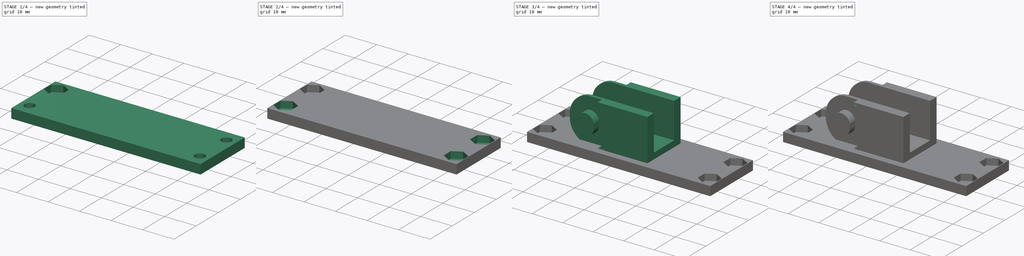
[diagram: build sequence overview — one tinted view per stage of 4, left to right]
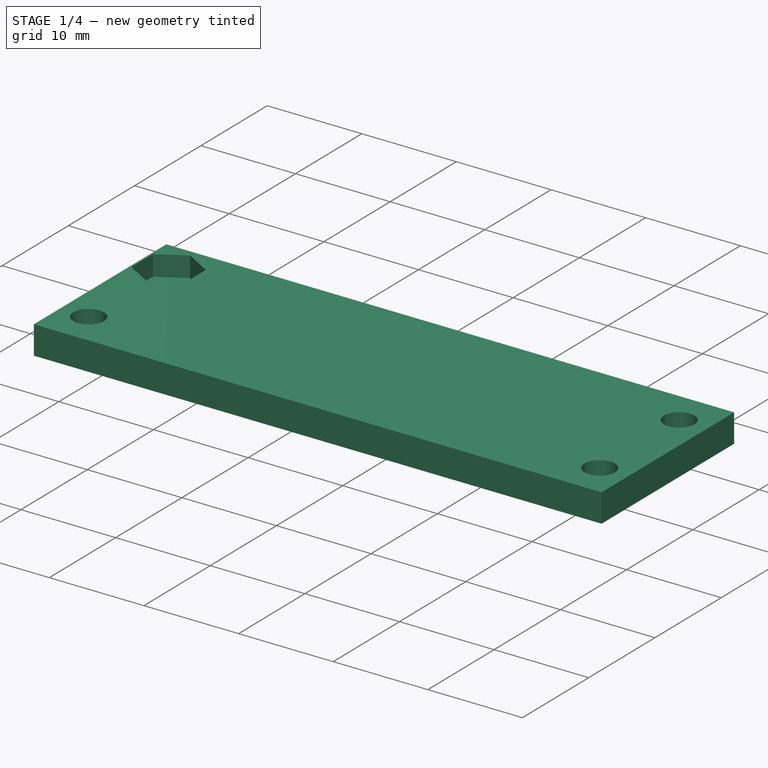
[diagram: stage 1 of 4 — iso view after this stage's code; geometry added in this stage tinted green]
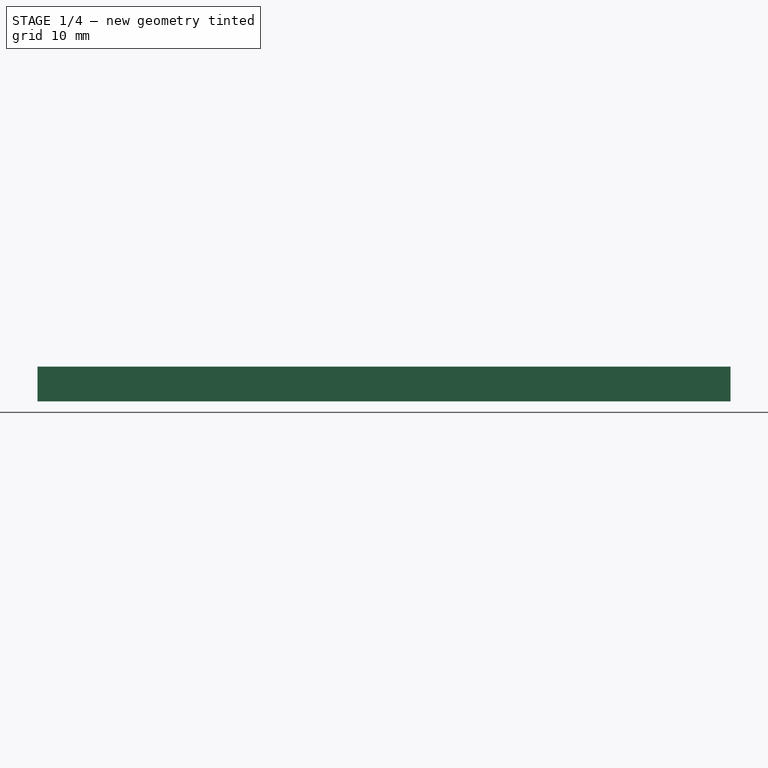
[diagram: stage 1 of 4 — front view after this stage's code; geometry added in this stage tinted green]
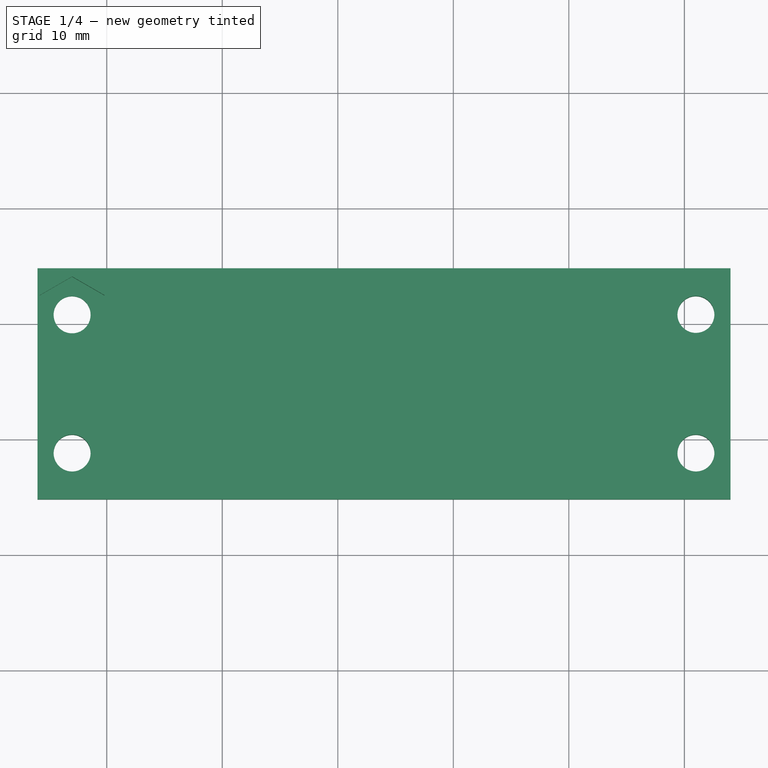
[diagram: stage 1 of 4 — top view after this stage's code; geometry added in this stage tinted green]
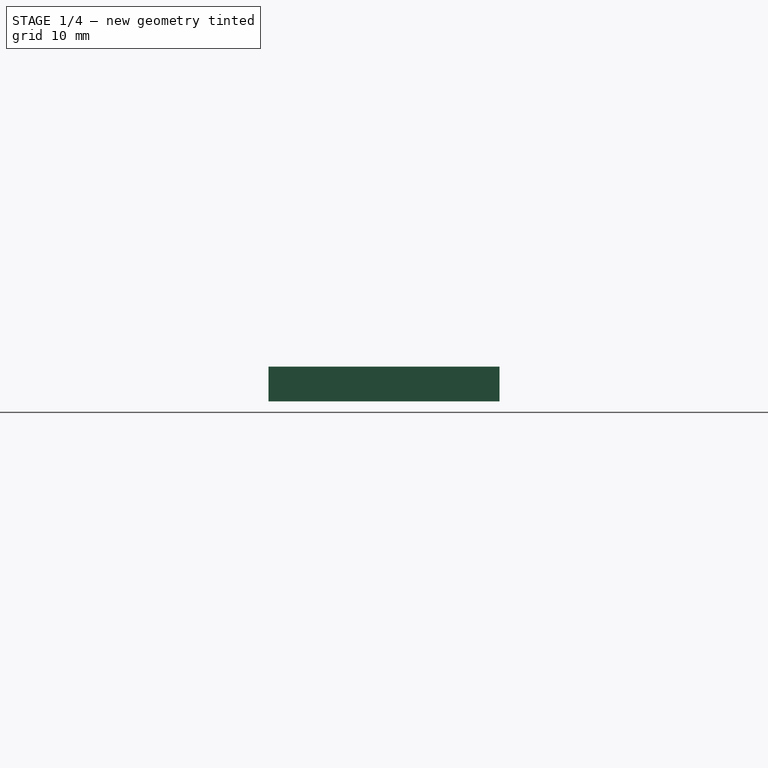
[diagram: stage 1 of 4 — right view after this stage's code; geometry added in this stage tinted green]
FCSTD DOCUMENT  (FreeCAD 0.15R4664 (Git))
Label: cadeneta-macho
License: CC-BY 3.0
LicenseURL: http://creativecommons.org/licenses/by/3.0/
objects: Part::Feature×5, Sketcher::SketchObject×4, Part::Cut×4, PartDesign::Pad×3, Part::Box×2, Part::MultiFuse×2, Part::Mirroring×1, PartDesign::Pocket×1
note: 26 computed .brp shape members not serialized (recipe doc carries the construction recipe); baked Part::Feature solids carry a one-line shape summary decoded from their .brp

FEATURE [Part::Feature] Fusion001  label="cable-chain-end-male"
  Placement = pos=(0,0,1) rot=(0,0,1;0rad)
  shape: bbox 26.85 x 16.5 x 13.7 mm, 26 faces (baked)
FEATURE [Part::Box] Box001  label="Cubo001"
  Height = 3
  Length = 60
  Placement = pos=(-26,-5.2,-8.85) rot=(0,0,1;0rad)
  Width = 20
FEATURE [Sketcher::SketchObject] Sketch003
  Placement = pos=(-26,-5.2,-5.85) rot=(0,0,1;0rad)
  Support = -> Box001 [Face6]
  sketch-geometry (7):
    g0: Circle CenterX=3 CenterY=4 CenterZ=0 NormalX=0 NormalY=0 NormalZ=1 Radius=1.6
    g1: LineSegment [constr] StartX=3 StartY=4 StartZ=0 EndX=3 EndY=16 EndZ=0
    g2: Circle CenterX=3 CenterY=16 CenterZ=0 NormalX=0 NormalY=0 NormalZ=1 Radius=1.6
    g3: LineSegment [constr] StartX=3 StartY=16 StartZ=0 EndX=57 EndY=16 EndZ=0
    g4: Circle CenterX=57 CenterY=16 CenterZ=0 NormalX=0 NormalY=0 NormalZ=1 Radius=1.6
    g5: LineSegment [constr] StartX=57 StartY=16 StartZ=0 EndX=57 EndY=4 EndZ=0
    g6: Circle CenterX=57 CenterY=4 CenterZ=0 NormalX=0 NormalY=0 NormalZ=1 Radius=1.6
  constraints (17):
    c: DistanceY(g-1,g0) = 4
    c: DistanceX(g-2,g0) = 3
    c: Coincident(g1,g0)
    c: Vertical(g1)
    c: Distance(g1) = 12
    c: Coincident(g2,g1)
    c: Radius(g2) = 1.6
    c: Coincident(g3,g1)
    c: Horizontal(g3)
    c: Distance(g3) = 54
    c: Coincident(g5,g3)
    c: Vertical(g5)
    c: Equal(g1,g5)
    c: Coincident(g6,g5)
    c: Equal(g6,g4)
    c: Equal(g4,g0)
    c: Equal(g0,g2)
FEATURE [PartDesign::Pocket] Pocket
  Length = 5
  Placement = pos=(-26,-5.2,-8.85) rot=(0,0,1;0rad)
  Sketch = -> Sketch003
  Type = 1
FEATURE [Part::Feature] Pad003  label="m3-nut-pocket-model001"
  Placement = pos=(-23,9.5,-8) rot=(0,0,1;0rad)
  shape: bbox 5.6 x 6.466 x 3 mm, 8 faces (baked)
FEATURE [Part::Feature] Pad004  label="m3-nut-pocket-model002"
  Placement = pos=(31,-2.5,-8) rot=(0,0,1;0rad)
  shape: bbox 5.6 x 6.466 x 3 mm, 8 faces (baked)
FEATURE [Part::Feature] Pad005  label="m3-nut-pocket-model003"
  Placement = pos=(31,9.5,-8) rot=(0,0,1;0rad)
  shape: bbox 5.6 x 6.466 x 3 mm, 8 faces (baked)
FEATURE [Part::Feature] Pad006  label="m3-nut-pocket-model004"
  Placement = pos=(-23,-2.5,-8) rot=(0,0,1;0rad)
  shape: bbox 5.6 x 6.466 x 3 mm, 8 faces (baked)
FEATURE [Part::Cut] Cut
  Base = -> Pocket
  Tool = -> Pad003
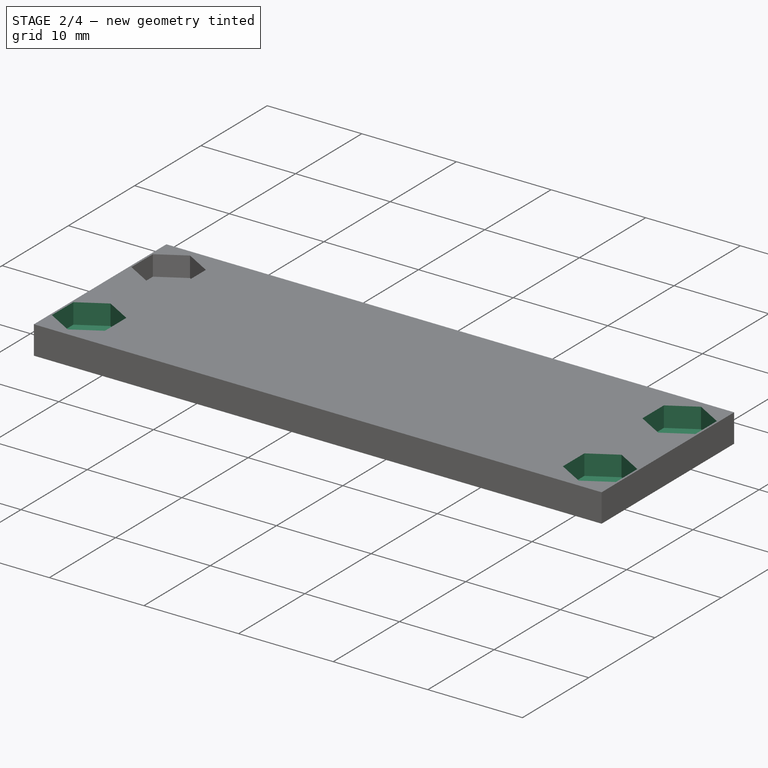
[diagram: stage 2 of 4 — iso view after this stage's code; geometry added in this stage tinted green]
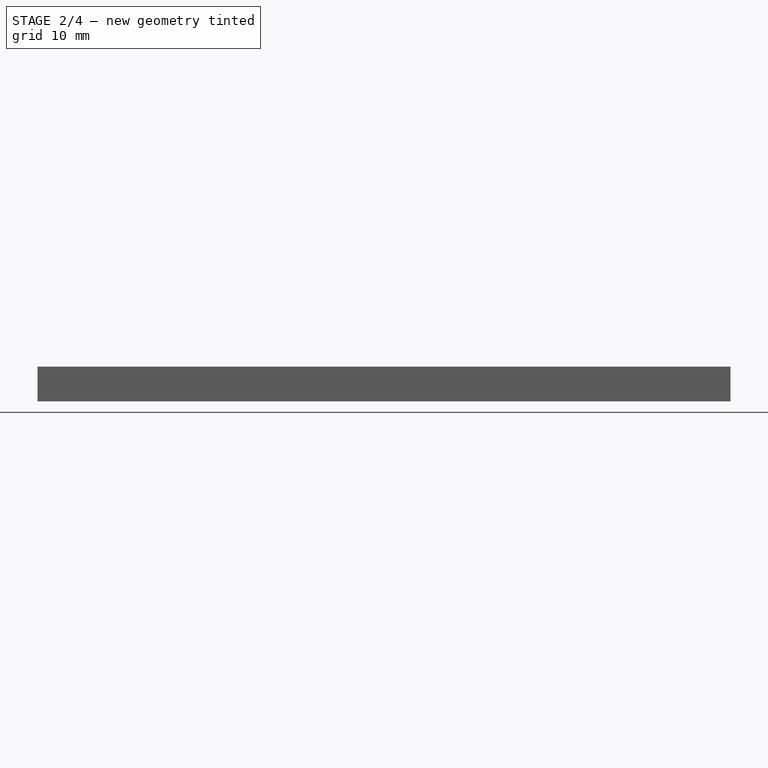
[diagram: stage 2 of 4 — front view after this stage's code; geometry added in this stage tinted green]
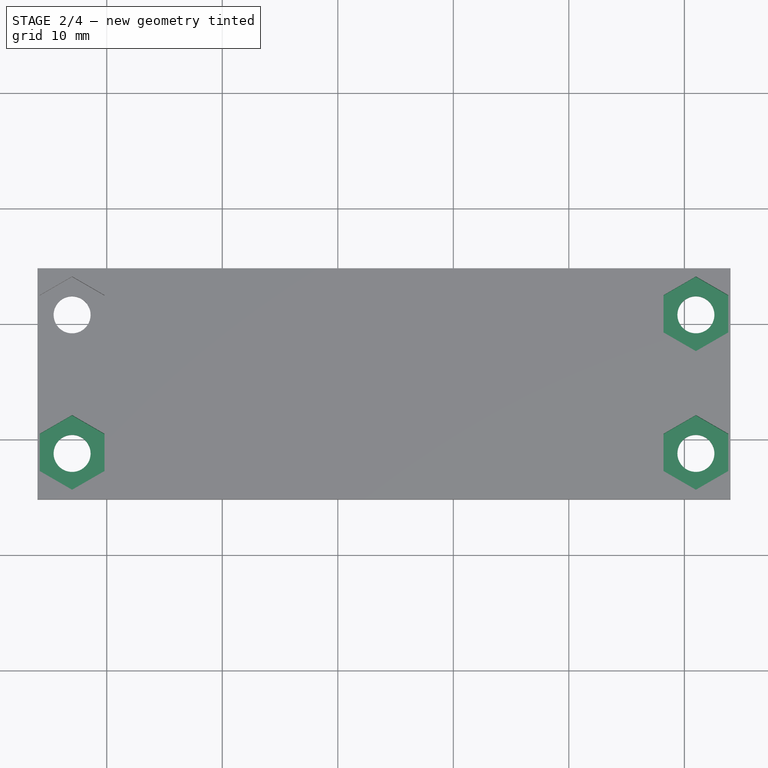
[diagram: stage 2 of 4 — top view after this stage's code; geometry added in this stage tinted green]
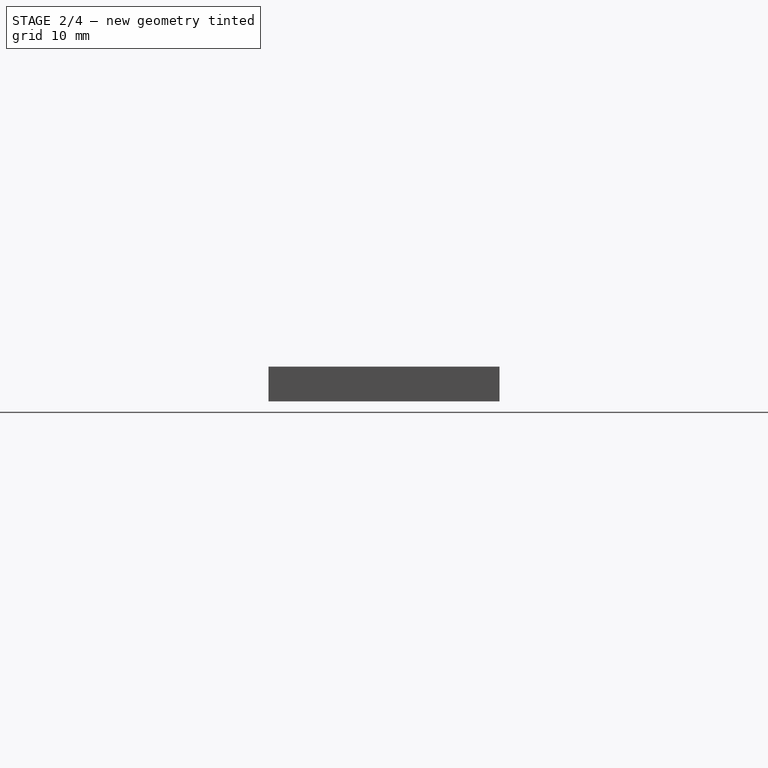
[diagram: stage 2 of 4 — right view after this stage's code; geometry added in this stage tinted green]
FEATURE [Part::Cut] Cut001
  Base = -> Cut
  Tool = -> Pad004
FEATURE [Part::Cut] Cut002
  Base = -> Cut001
  Tool = -> Pad005
FEATURE [Part::Cut] Cut003
  Base = -> Cut002
  Tool = -> Pad006
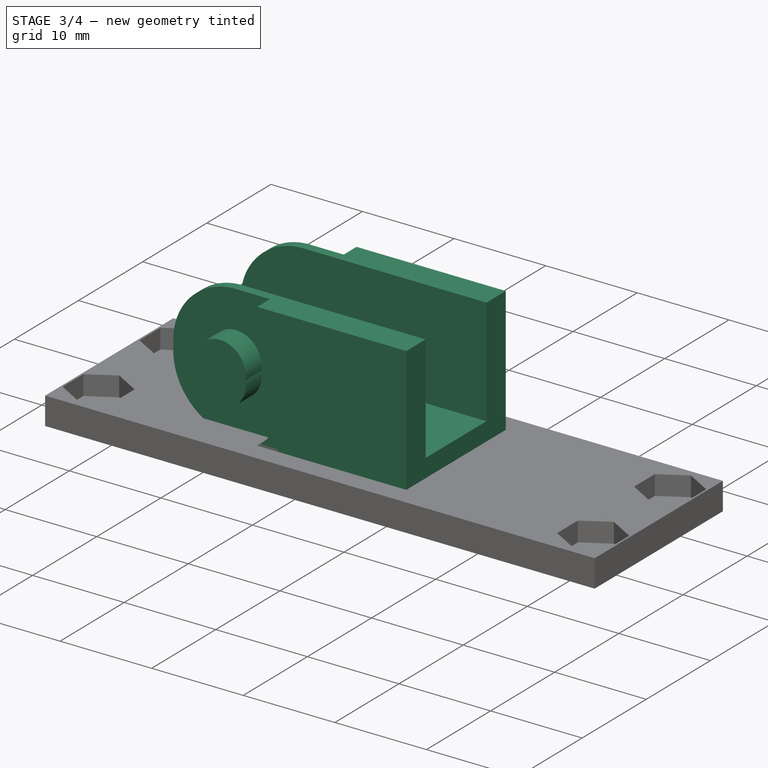
[diagram: stage 3 of 4 — iso view after this stage's code; geometry added in this stage tinted green]
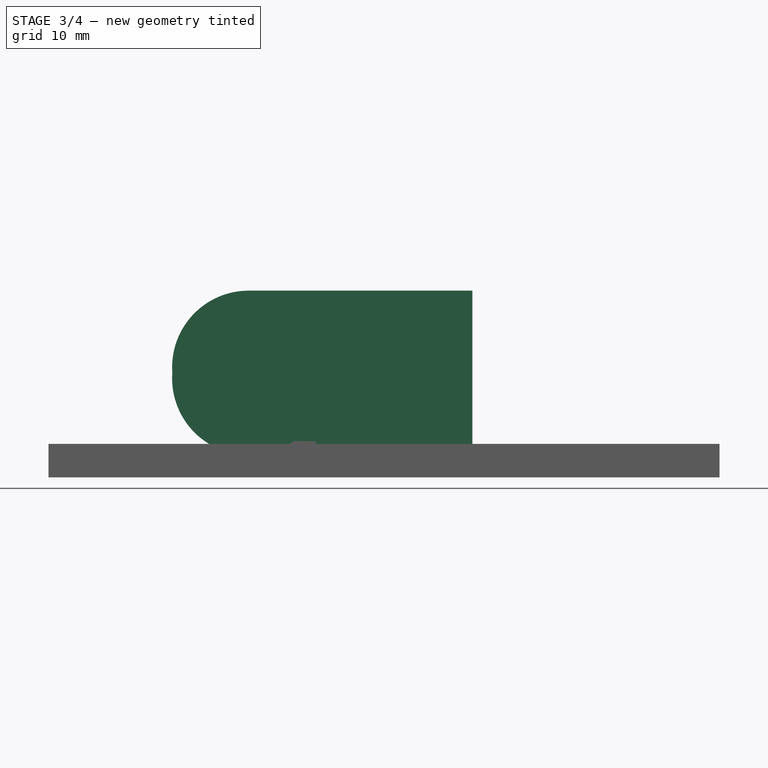
[diagram: stage 3 of 4 — front view after this stage's code; geometry added in this stage tinted green]
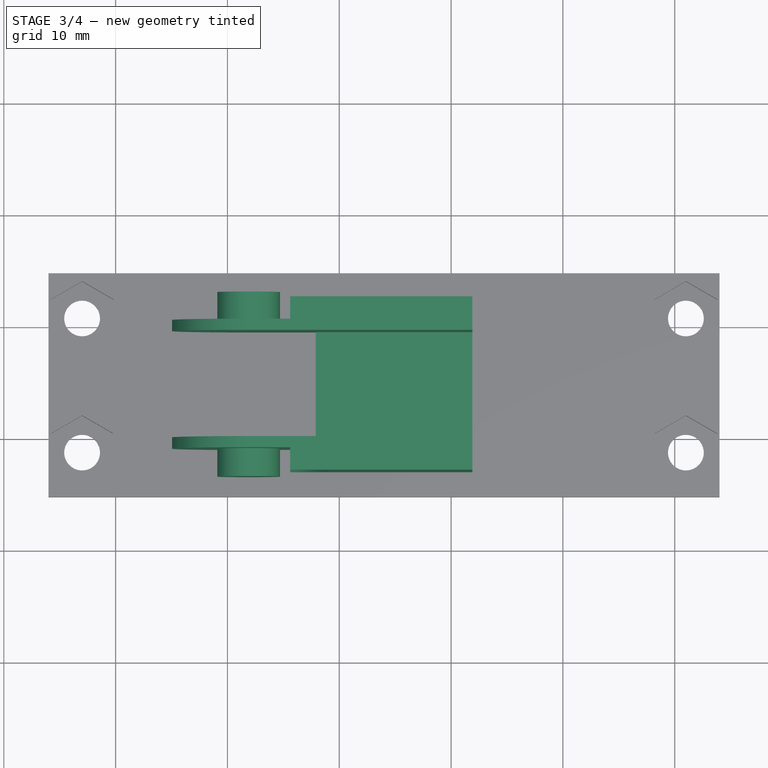
[diagram: stage 3 of 4 — top view after this stage's code; geometry added in this stage tinted green]
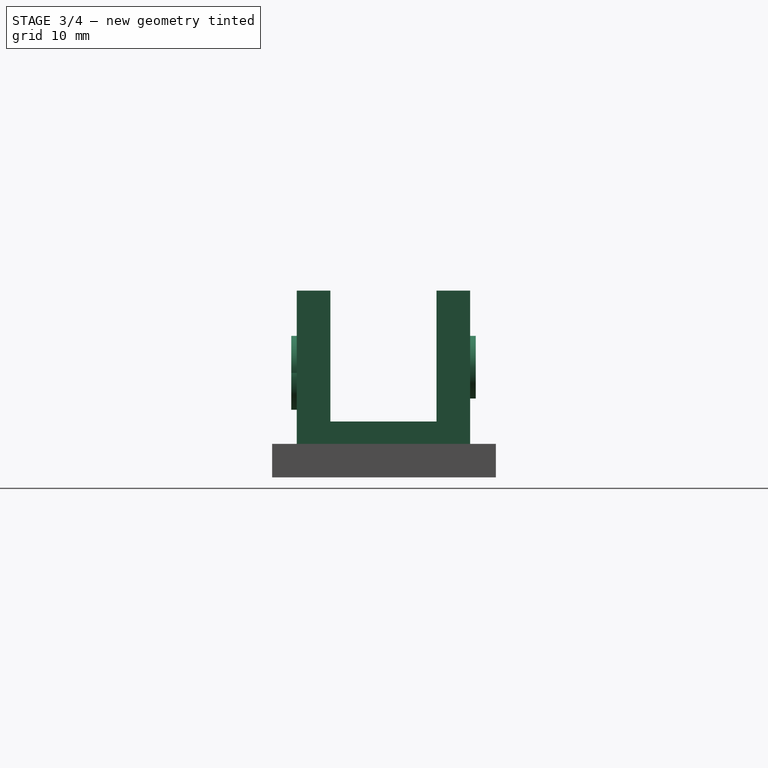
[diagram: stage 3 of 4 — right view after this stage's code; geometry added in this stage tinted green]
FEATURE [Sketcher::SketchObject] Sketch
  Placement = pos=(0,0,0) rot=(1,0,0;1.5708rad)
  sketch-geometry (4):
    g0: LineSegment StartX=-8.09834 StartY=6.85 StartZ=0 EndX=11.9017 EndY=6.85 EndZ=0
    g1: LineSegment StartX=11.9017 StartY=6.85 StartZ=0 EndX=11.9017 EndY=-6.85 EndZ=0
    g2: LineSegment StartX=11.9017 StartY=-6.85 StartZ=0 EndX=-8.09834 EndY=-6.85 EndZ=0
    g3: ArcOfCircle CenterX=-8.09833 CenterY=0 CenterZ=0 NormalX=0 NormalY=0 NormalZ=1 Radius=6.85 StartAngle=1.5708 EndAngle=4.71239
  constraints (13):
    c: Horizontal(g0)
    c: Coincident(g0,g1)
    c: Vertical(g1)
    c: Coincident(g1,g2)
    c: Horizontal(g2)
    c: Coincident(g3,g0)
    c: Coincident(g3,g2)
    c: DistanceY(g1) = -13.7
    c: Equal(g2,g0)
    c: DistanceX(g0) = 20
    c: Symmetric(g0,g1,g-1)
    c: Radius(g3) = 6.85
    c: Distance(g-1,g3) = 8.09833
FEATURE [PartDesign::Pad] Pad
  Length = 1
  Length2 = 100
  Placement = pos=(0,0,0) rot=(1,0,0;1.5708rad)
  Sketch = -> Sketch
  Type = 0
FEATURE [Sketcher::SketchObject] Sketch001
  Placement = pos=(0,-1,0) rot=(1,0,0;1.5708rad)
  Support = -> Pad [Face6]
  sketch-geometry (1):
    g0: Circle CenterX=-8.09833 CenterY=0 CenterZ=0 NormalX=0 NormalY=0 NormalZ=1 Radius=2.8
  constraints (3):
    c: PointOnObject(g0,g-1)
    c: DistanceX(g-2,g0) = -8.09833
    c: Radius(g0) = 2.8
FEATURE [PartDesign::Pad] Pad001
  Length = 2.5
  Length2 = 100
  Placement = pos=(0,0,0) rot=(1,0,0;1.5708rad)
  Sketch = -> Sketch001
  Type = 0
FEATURE [Part::Box] Box  label="Cubo"
  Height = 2
  Length = 14
  Placement = pos=(-2.1,-3,-6.85) rot=(0,0,1;0rad)
  Width = 15.5
FEATURE [Part::MultiFuse] Fusion002  label="cable-chain-end-male-final"
  Shapes = -> [Fusion001,Cut003]
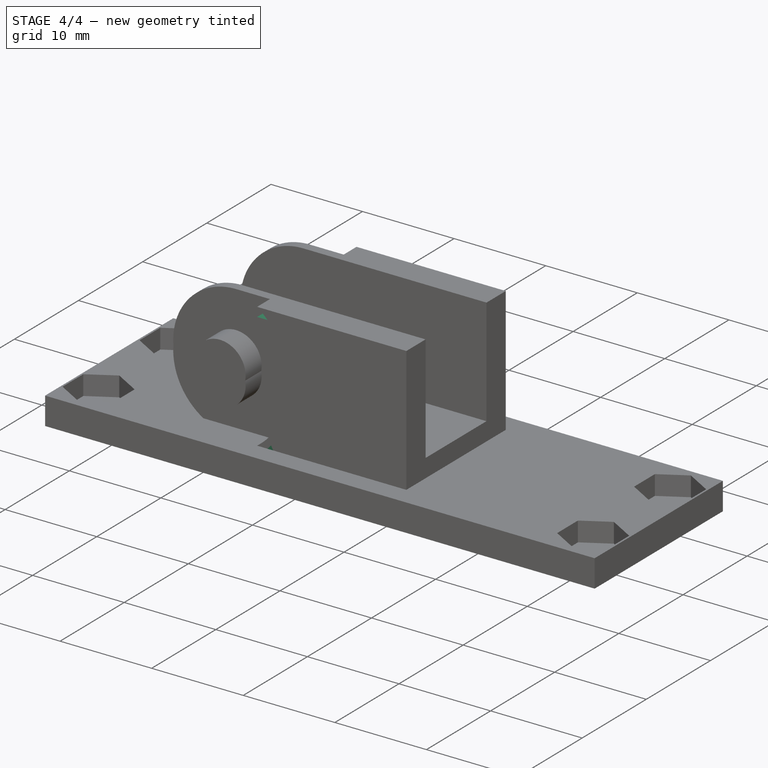
[diagram: stage 4 of 4 — iso view after this stage's code; geometry added in this stage tinted green]
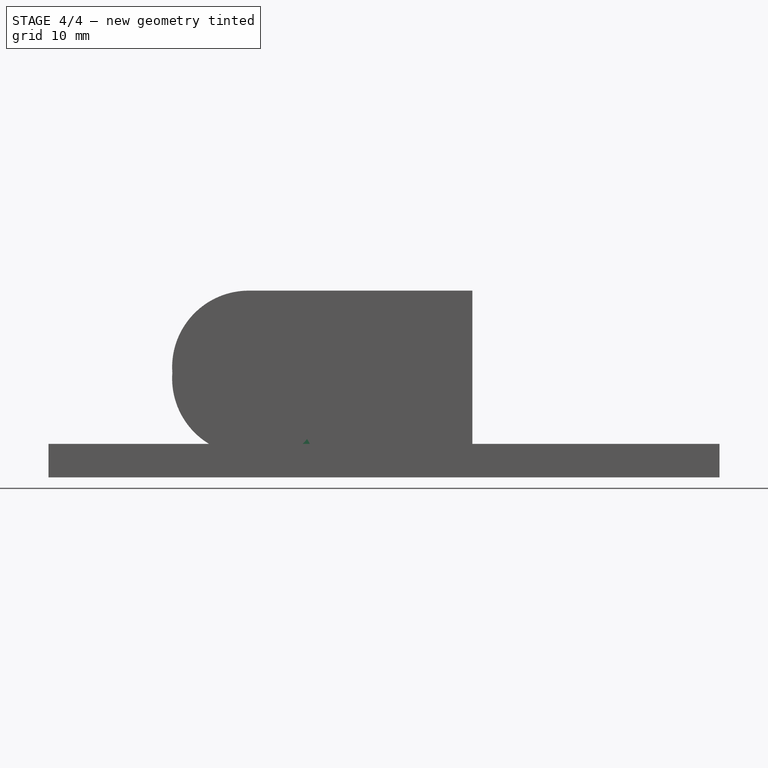
[diagram: stage 4 of 4 — front view after this stage's code; geometry added in this stage tinted green]
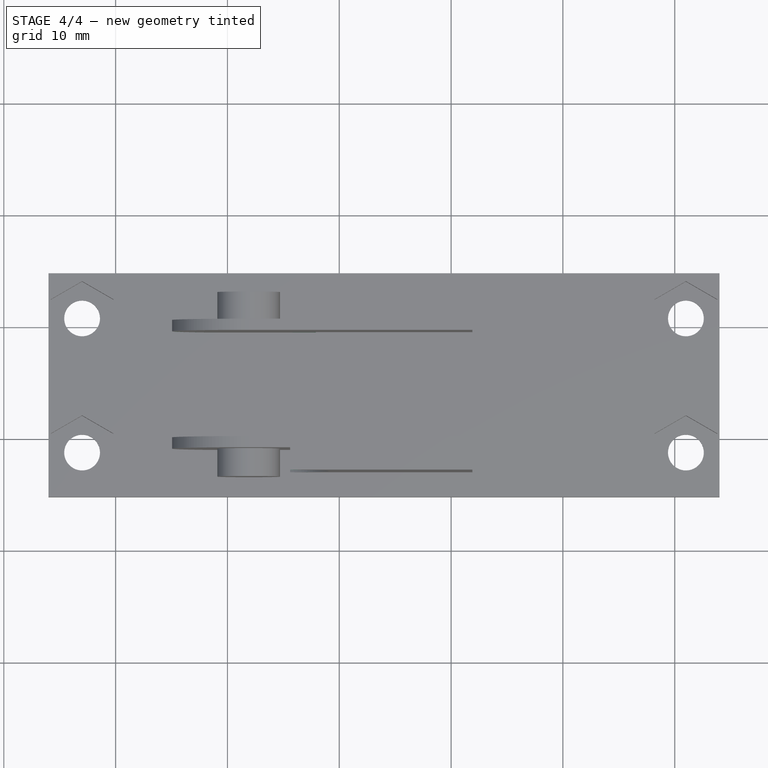
[diagram: stage 4 of 4 — top view after this stage's code; geometry added in this stage tinted green]
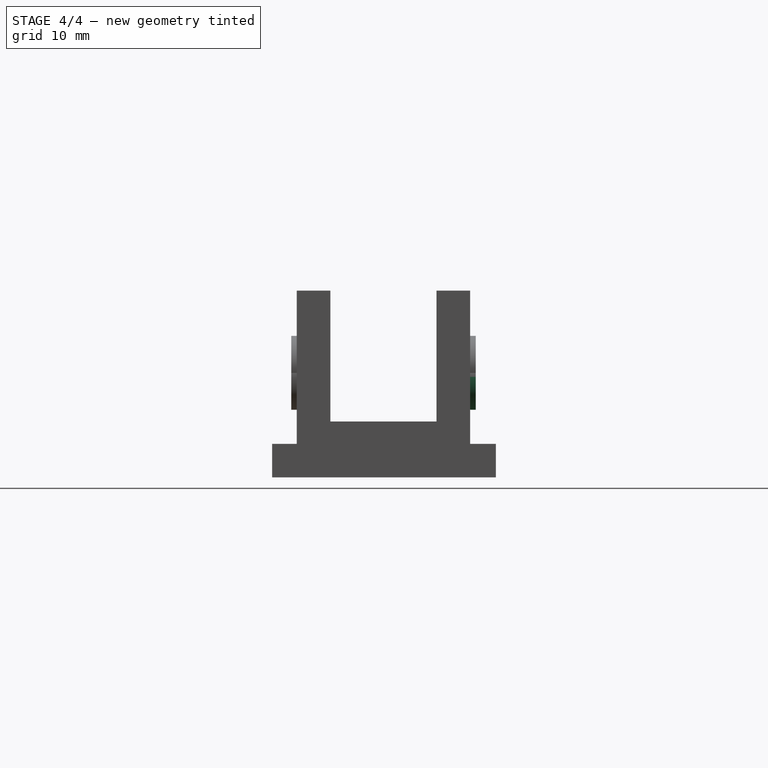
[diagram: stage 4 of 4 — right view after this stage's code; geometry added in this stage tinted green]
FEATURE [Sketcher::SketchObject] Sketch002
  Placement = pos=(0,-1,0) rot=(1,0,0;1.5708rad)
  Support = -> Pad001 [Face5]
  sketch-geometry (4):
    g0: LineSegment StartX=-4.39284 StartY=6.85 StartZ=0 EndX=11.9009 EndY=6.85 EndZ=0
    g1: LineSegment StartX=11.9009 StartY=6.85 StartZ=0 EndX=11.9009 EndY=-6.85 EndZ=0
    g2: LineSegment StartX=11.9009 StartY=-6.85 StartZ=0 EndX=-4.39284 EndY=-6.85 EndZ=0
    g3: ArcOfCircle CenterX=-9.42548 CenterY=0 CenterZ=0 NormalX=0 NormalY=0 NormalZ=1 Radius=8.5 StartAngle=5.34602 EndAngle=7.22035
  constraints (10):
    c: Horizontal(g0)
    c: Coincident(g0,g1)
    c: Coincident(g1,g2)
    c: Horizontal(g2)
    c: Coincident(g3,g0)
    c: Coincident(g3,g2)
    c: Radius(g3) = 8.5
    c: Equal(g2,g0)
    c: DistanceY(g1) = -13.7
    c: Symmetric(g1,g0,g-1)
FEATURE [PartDesign::Pad] Pad002
  Length = 2
  Length2 = 100
  Placement = pos=(0,0,0) rot=(1,0,0;1.5708rad)
  Sketch = -> Sketch002
  Type = 0
FEATURE [Part::Mirroring] Part__Mirroring  label="Pad002 (Mirror #1)"
  Base = (0,4.75,0)
  Normal = (0,1,0)
  Source = -> Pad002
FEATURE [Part::MultiFuse] Fusion
  Shapes = -> [Box,Pad002,Part__Mirroring]
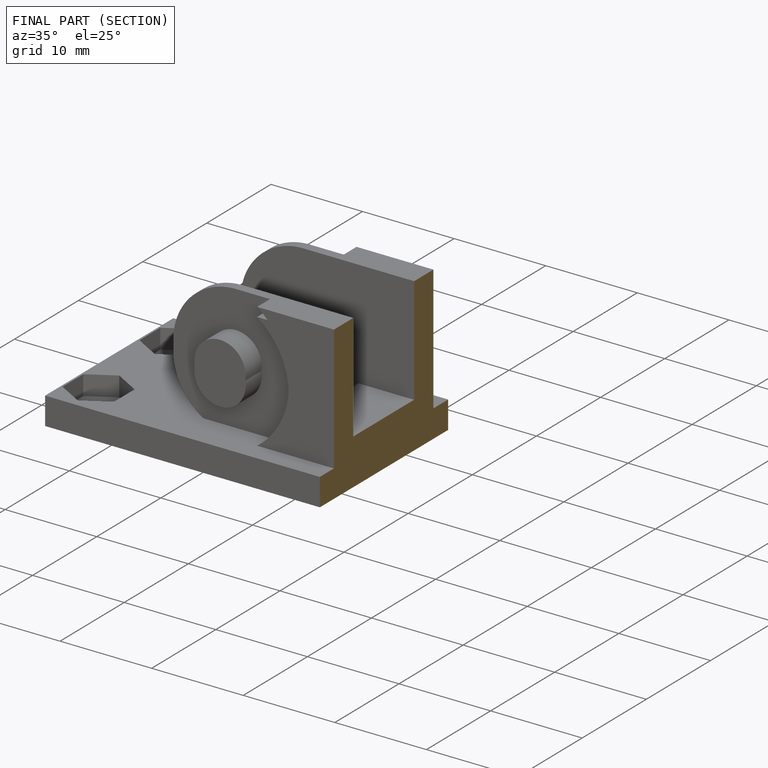
[diagram: finished part — half-section view (interior)]
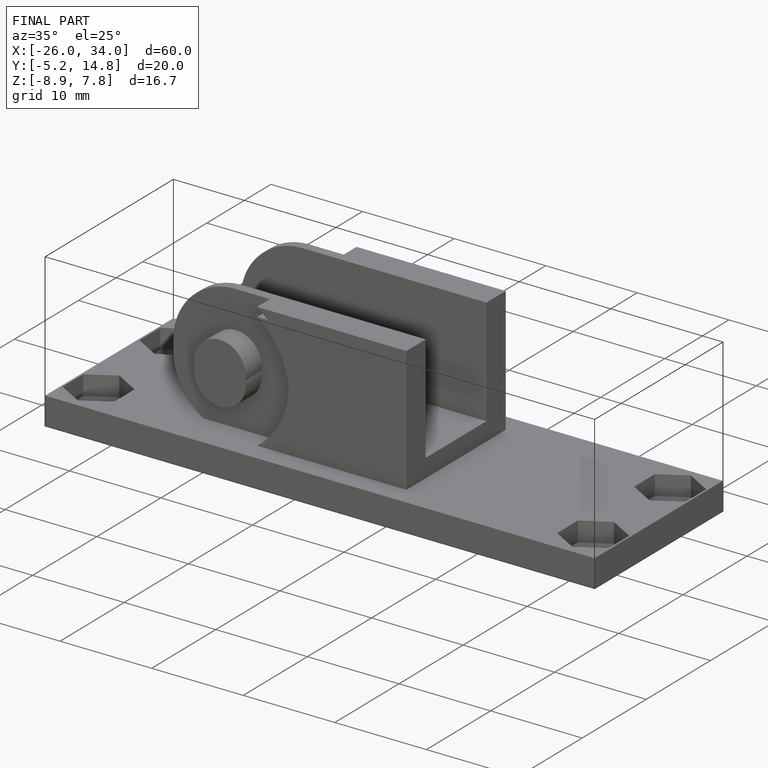
[diagram: finished part — iso view with bounding-box wireframe]
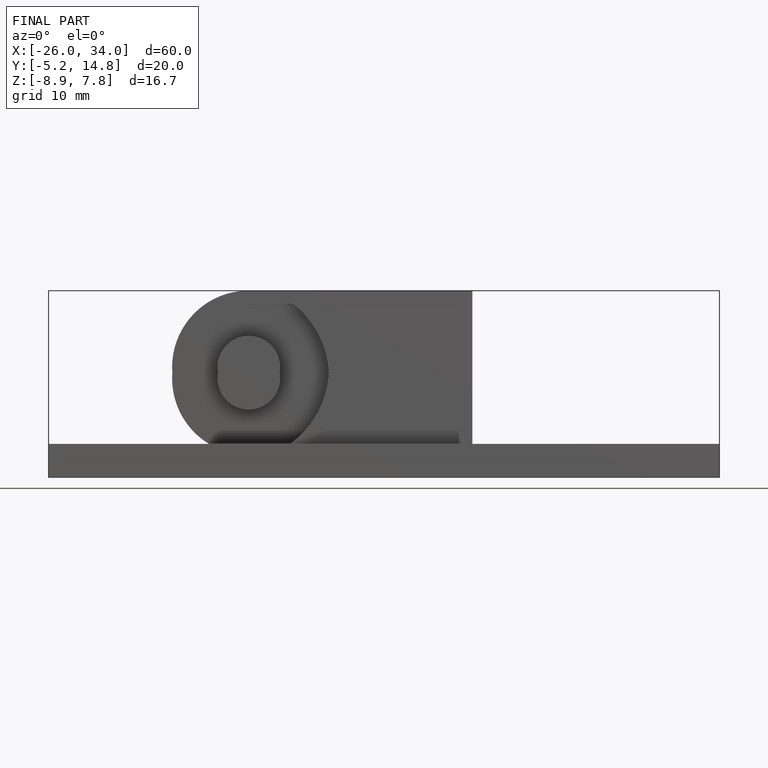
[diagram: finished part — front view with bounding-box wireframe]
